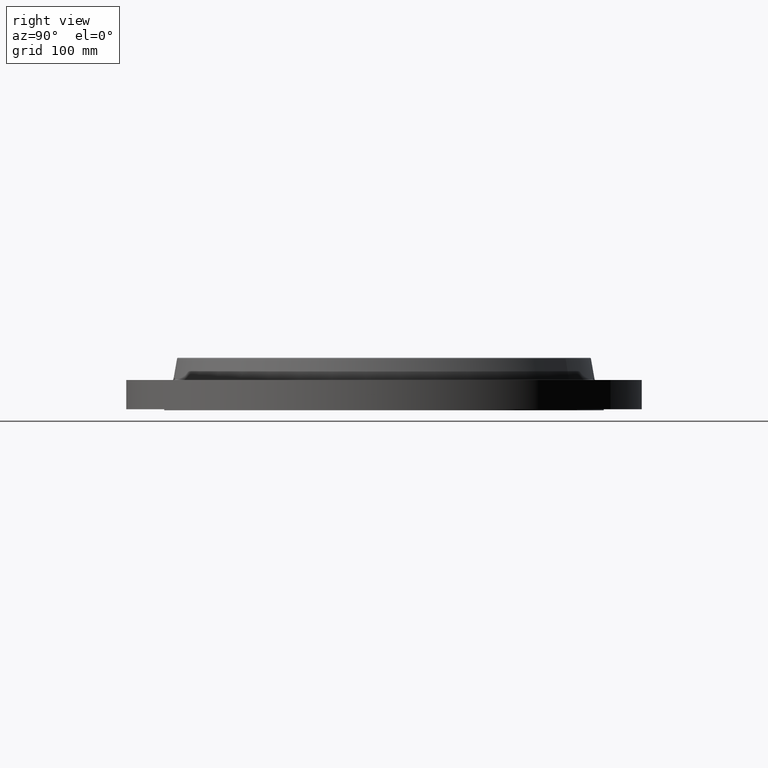
[diagram: clean part render]
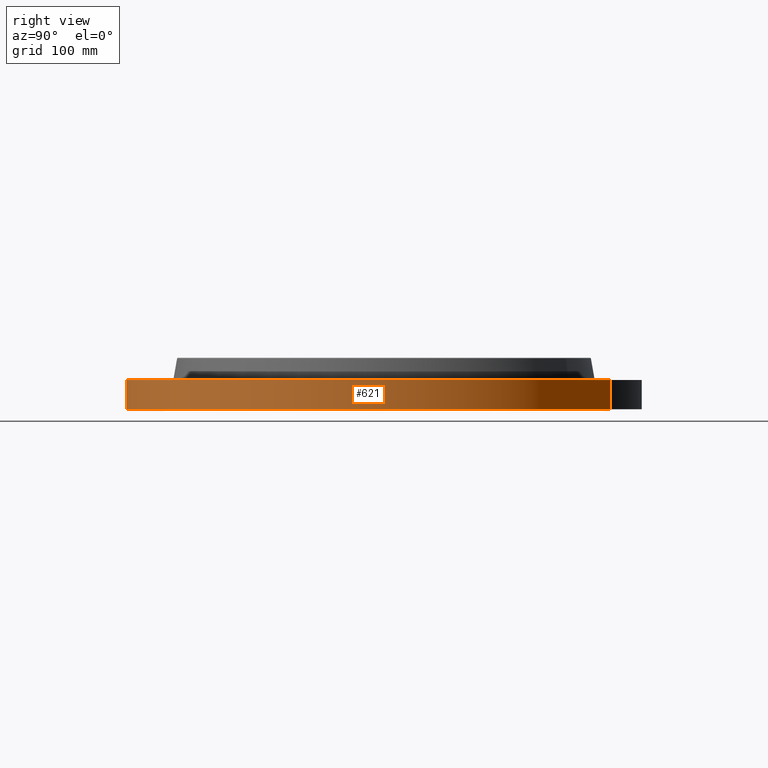
[diagram: same view with one face highlighted and labeled with its STEP entity id]
A machine part, right view. The second image highlights one B-rep face of the part: STEP entity #621.
In plain terms, the highlighted cylindrical surface (partial cylindrical patch) has radius 406.4 mm, axis along (0, 0, -1).
Its self-contained STEP definition (entity closure, byte-faithful):
#207=AXIS2_PLACEMENT_3D('Circle Axis2P3D',#205,#206,$) ;
#582=AXIS2_PLACEMENT_3D('Cylinder Axis2P3D',#579,#580,#581) ;
#612=AXIS2_PLACEMENT_3D('Circle Axis2P3D',#610,#611,$) ;
#200=CARTESIAN_POINT('Vertex',(-7.6708086177,-14.0413209903,1.95818864186E-015)) ;
#202=CARTESIAN_POINT('Vertex',(7.6708086177,14.0413209903,1.95818864186E-015)) ;
#205=CARTESIAN_POINT('Axis2P3D Location',(0.,0.,0.)) ;
#579=CARTESIAN_POINT('Axis2P3D Location',(0.,0.,1.56375000001)) ;
#584=CARTESIAN_POINT('Line Origine',(-7.6708086177,-14.0413209903,0.905000000004)) ;
#588=CARTESIAN_POINT('Vertex',(-7.6708086177,-14.0413209903,1.81000000001)) ;
#595=CARTESIAN_POINT('Vertex',(7.6708086177,14.0413209903,1.81000000001)) ;
#598=CARTESIAN_POINT('Line Origine',(7.6708086177,14.0413209903,0.905000000004)) ;
#610=CARTESIAN_POINT('Axis2P3D Location',(0.,0.,1.81000000001)) ;
#206=DIRECTION('Axis2P3D Direction',(0.,0.,-0.0393700787402)) ;
#580=DIRECTION('Axis2P3D Direction',(0.,0.,-0.0393700787402)) ;
#581=DIRECTION('Axis2P3D XDirection',(0.0188750212049,0.0345504945626,0.)) ;
#585=DIRECTION('Vector Direction',(0.,0.,-0.0393700787402)) ;
#599=DIRECTION('Vector Direction',(0.,0.,-0.0393700787402)) ;
#611=DIRECTION('Axis2P3D Direction',(0.,0.,-0.0393700787402)) ;
#586=VECTOR('Line Direction',#585,0.0393700787402) ;
#600=VECTOR('Line Direction',#599,0.0393700787402) ;
#616=ORIENTED_EDGE('',*,*,#209,.F.) ;
#617=ORIENTED_EDGE('',*,*,#602,.T.) ;
#618=ORIENTED_EDGE('',*,*,#614,.T.) ;
#619=ORIENTED_EDGE('',*,*,#590,.F.) ;
#621=ADVANCED_FACE('PartBody',(#620),#583,.T.) ;
#208=CIRCLE('generated circle',#207,16.0000000001) ;
#613=CIRCLE('generated circle',#612,16.0000000001) ;
#583=CYLINDRICAL_SURFACE('generated cylinder',#582,16.0000000001) ;
#209=EDGE_CURVE('',#203,#201,#208,.T.) ;
#590=EDGE_CURVE('',#201,#589,#587,.F.) ;
#602=EDGE_CURVE('',#203,#596,#601,.F.) ;
#614=EDGE_CURVE('',#596,#589,#613,.T.) ;
#615=EDGE_LOOP('',(#616,#617,#618,#619)) ;
#620=FACE_OUTER_BOUND('',#615,.T.) ;
#587=LINE('Line',#584,#586) ;
#601=LINE('Line',#598,#600) ;
#201=VERTEX_POINT('',#200) ;
#203=VERTEX_POINT('',#202) ;
#589=VERTEX_POINT('',#588) ;
#596=VERTEX_POINT('',#595) ;